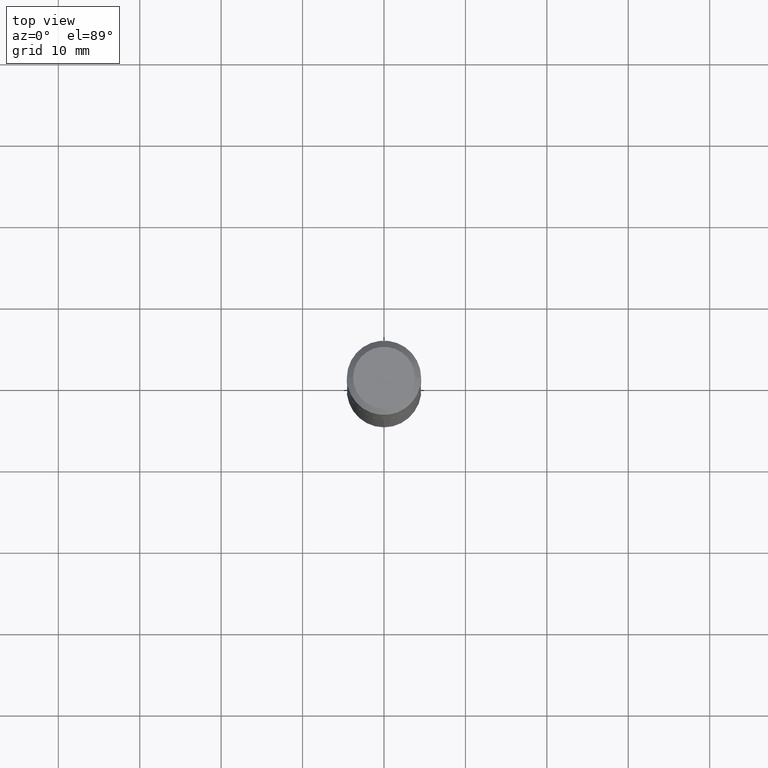
[diagram: clean part render]
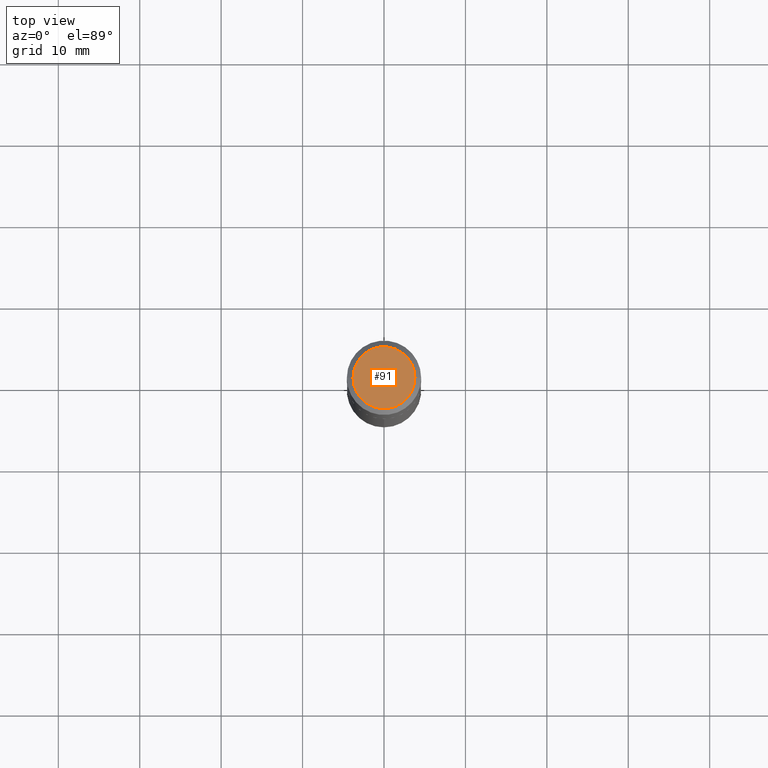
[diagram: same view with one face highlighted and labeled with its STEP entity id]
A machine part, top view. The second image highlights one B-rep face of the part: STEP entity #91.
In plain terms, the highlighted planar face has unit normal (0, -0, -1).
Its self-contained STEP definition (entity closure, byte-faithful):
#22 = DIRECTION ( 'NONE',  ( 2.438088387897960049E-29, -3.491481338843145188E-15, -1.000000000000000000 ) ) ;
#25 = DIRECTION ( 'NONE',  ( -1.000000000000000000, 6.982962677686265922E-15, -4.876176775795935793E-29 ) ) ;
#32 = EDGE_CURVE ( 'NONE', #67, #70, #376, .T. ) ;
#44 = EDGE_LOOP ( 'NONE', ( #301, #229 ) ) ;
#49 = CARTESIAN_POINT ( 'NONE',  ( -0.1496999999999999997, 1.097721732932280493E-15, 9.552245033274444849E-19 ) ) ;
#65 = CIRCLE ( 'NONE', #220, 0.1496999999999999997 ) ;
#67 = VERTEX_POINT ( 'NONE', #338 ) ;
#70 = VERTEX_POINT ( 'NONE', #49 ) ;
#85 = CARTESIAN_POINT ( 'NONE',  ( -2.335971725809280860E-47, 3.335148527799648041E-33, 9.552245033349378931E-19 ) ) ;
#91 = ADVANCED_FACE ( 'NONE', ( #411 ), #112, .F. ) ;
#112 = PLANE ( 'NONE',  #168 ) ;
#118 = EDGE_CURVE ( 'NONE', #70, #67, #65, .T. ) ;
#168 = AXIS2_PLACEMENT_3D ( 'NONE', #175, #22, #25 ) ;
#172 = DIRECTION ( 'NONE',  ( -2.445468806185136597E-29, 3.491481338843145583E-15, 1.000000000000000000 ) ) ;
#175 = CARTESIAN_POINT ( 'NONE',  ( -1.167985862904640430E-47, 1.667574263899824020E-33, 4.776122516674689466E-19 ) ) ;
#179 = DIRECTION ( 'NONE',  ( -2.445468806185136597E-29, 3.491481338843145583E-15, 1.000000000000000000 ) ) ;
#180 = AXIS2_PLACEMENT_3D ( 'NONE', #234, #172, #308 ) ;
#220 = AXIS2_PLACEMENT_3D ( 'NONE', #85, #179, #314 ) ;
#229 = ORIENTED_EDGE ( 'NONE', *, *, #32, .T. ) ;
#234 = CARTESIAN_POINT ( 'NONE',  ( -2.335971725809280860E-47, 3.335148527799648041E-33, 9.552245033349378931E-19 ) ) ;
#301 = ORIENTED_EDGE ( 'NONE', *, *, #118, .T. ) ;
#308 = DIRECTION ( 'NONE',  ( 1.000000000000000000, -6.982962677686265922E-15, 4.876153293444285073E-29 ) ) ;
#314 = DIRECTION ( 'NONE',  ( 1.000000000000000000, -6.982962677686265922E-15, 4.876153293444285073E-29 ) ) ;
#338 = CARTESIAN_POINT ( 'NONE',  ( 0.1496999999999999997, -1.182296240315618899E-15, 9.552245033427269316E-19 ) ) ;
#376 = CIRCLE ( 'NONE', #180, 0.1496999999999999997 ) ;
#411 = FACE_OUTER_BOUND ( 'NONE', #44, .T. ) ;